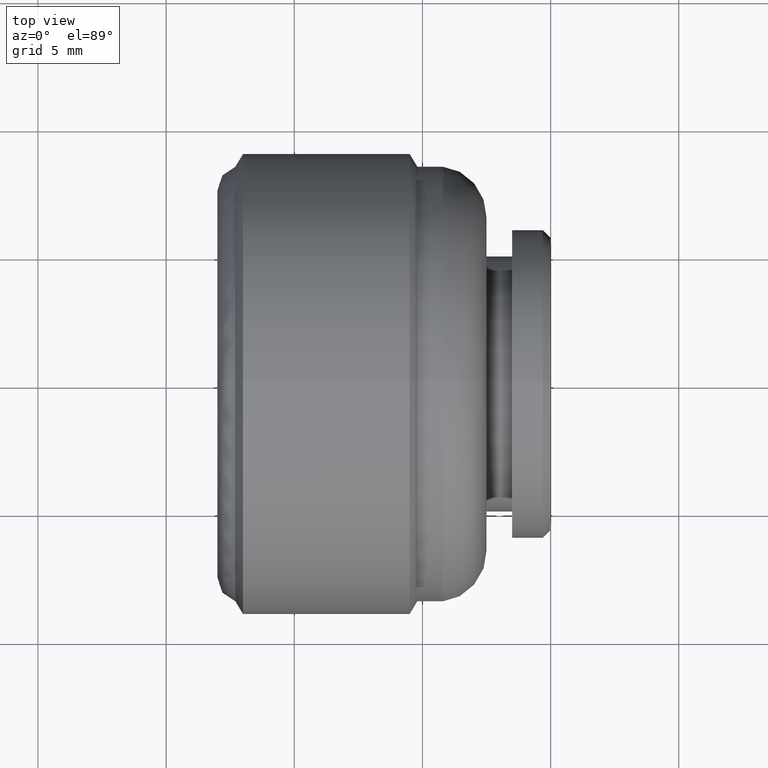
[diagram: clean part render]
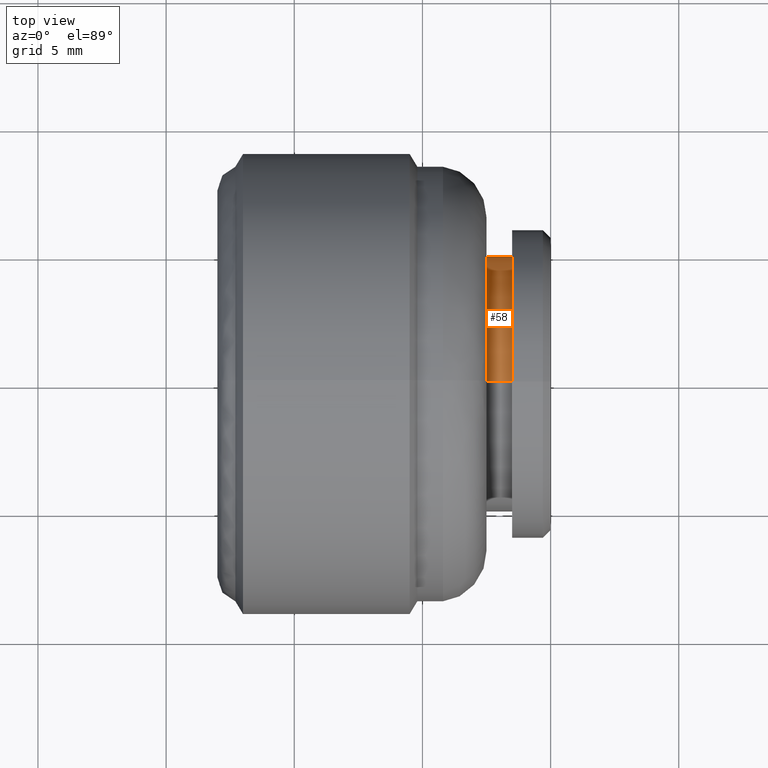
[diagram: same view with one face highlighted and labeled with its STEP entity id]
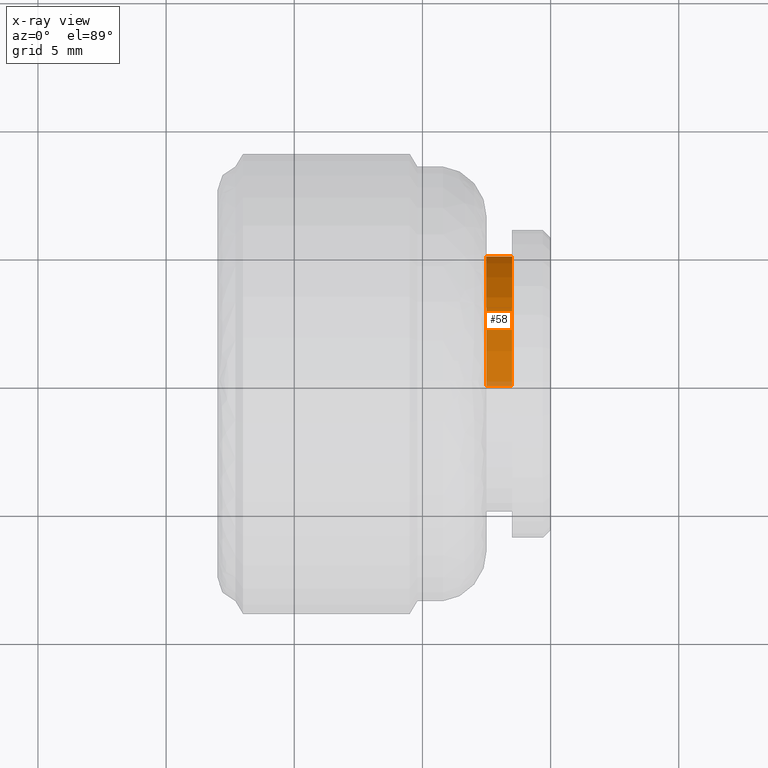
[diagram: x-ray of the same camera — body ghosted, the highlighted face saturated]
A machine part, top view. The second image highlights one B-rep face of the part: STEP entity #58.
The next image is the same camera in x-ray: the body ghosted, the highlighted face saturated — about 3% of this face is hidden behind the body in this view.
In plain terms, the highlighted cylindrical surface (partial cylindrical patch) has radius 5 mm, axis along (1, -0, -0).
Its self-contained STEP definition (entity closure, byte-faithful):
#58=ADVANCED_FACE('',(#256),#255,.T.);
#255=CYLINDRICAL_SURFACE('',#539,5.00000000000E+00);
#256=FACE_OUTER_BOUND('',#540,.T.);
#536=CARTESIAN_POINT('',(0.00000000000E+00,0.00000000000E+00,0.00000000000E+00));
#537=DIRECTION('',(1.00000000000E+00,-0.00000000000E+00,-0.00000000000E+00));
#538=DIRECTION('',(-0.00000000000E+00,-0.00000000000E+00,-1.00000000000E+00));
#539=AXIS2_PLACEMENT_3D('',#536,#537,#538);
#540=EDGE_LOOP('',(#782,#783,#784,#785));
#782=ORIENTED_EDGE('',*,*,#847,.T.);
#783=ORIENTED_EDGE('',*,*,#876,.F.);
#784=ORIENTED_EDGE('',*,*,#850,.F.);
#785=ORIENTED_EDGE('',*,*,#877,.T.);
#847=EDGE_CURVE('',#957,#956,#964,.T.);
#850=EDGE_CURVE('',#984,#985,#986,.T.);
#876=EDGE_CURVE('',#985,#956,#1153,.T.);
#877=EDGE_CURVE('',#984,#957,#1159,.T.);
#956=VERTEX_POINT('',#1347);
#957=VERTEX_POINT('',#1348);
#964=CIRCLE('',#1356,5.00000000000E+00);
#984=VERTEX_POINT('',#1367);
#985=VERTEX_POINT('',#1368);
#986=CIRCLE('',#1372,5.00000000000E+00);
#1153=(BOUNDED_CURVE() B_SPLINE_CURVE(1,(#1456,#1457),.UNSPECIFIED.,.F.,.F.) B_SPLINE_CURVE_WITH_KNOTS((2,2),(8.33332935974E-02,9.16666633252E-01),.UNSPECIFIED.) CURVE() GEOMETRIC_REPRESENTATION_ITEM() RATIONAL_B_SPLINE_CURVE((1.00000000000E+00,1.00000000000E+00)) REPRESENTATION_ITEM('') );
#1159=(BOUNDED_CURVE() B_SPLINE_CURVE(1,(#1458,#1459),.UNSPECIFIED.,.F.,.F.) B_SPLINE_CURVE_WITH_KNOTS((2,2),(8.33333333333E-02,9.16666666667E-01),.UNSPECIFIED.) CURVE() GEOMETRIC_REPRESENTATION_ITEM() RATIONAL_B_SPLINE_CURVE((7.50000000000E-01,7.50000000000E-01)) REPRESENTATION_ITEM('') );
#1347=CARTESIAN_POINT('',(-1.50000000000E+00,2.96059473233E-16,-5.00000000000E+00));
#1348=CARTESIAN_POINT('',(-1.50000000000E+00,0.00000000000E+00,5.00000000000E+00));
#1353=CARTESIAN_POINT('',(-1.50000000000E+00,0.00000000000E+00,0.00000000000E+00));
#1354=DIRECTION('',(-1.00000000000E+00,0.00000000000E+00,0.00000000000E+00));
#1355=DIRECTION('',(0.00000000000E+00,-1.22460635382E-16,1.00000000000E+00));
#1356=AXIS2_PLACEMENT_3D('',#1353,#1354,#1355);
#1367=CARTESIAN_POINT('',(-2.50000000000E+00,0.00000000000E+00,5.00000000000E+00));
#1368=CARTESIAN_POINT('',(-2.50000000000E+00,2.96059473233E-16,-5.00000000000E+00));
#1369=CARTESIAN_POINT('',(-2.50000000000E+00,0.00000000000E+00,0.00000000000E+00));
#1370=DIRECTION('',(-1.00000000000E+00,0.00000000000E+00,0.00000000000E+00));
#1371=DIRECTION('',(0.00000000000E+00,-1.22460635382E-16,1.00000000000E+00));
#1372=AXIS2_PLACEMENT_3D('',#1369,#1370,#1371);
#1456=CARTESIAN_POINT('',(-2.50000004768E+00,0.00000000000E+00,-5.00000000000E+00));
#1457=CARTESIAN_POINT('',(-1.50000004010E+00,0.00000000000E+00,-5.00000000000E+00));
#1458=CARTESIAN_POINT('',(-2.50000000000E+00,-2.96059473233E-16,5.00000000000E+00));
#1459=CARTESIAN_POINT('',(-1.50000000000E+00,-2.96059473233E-16,5.00000000000E+00));